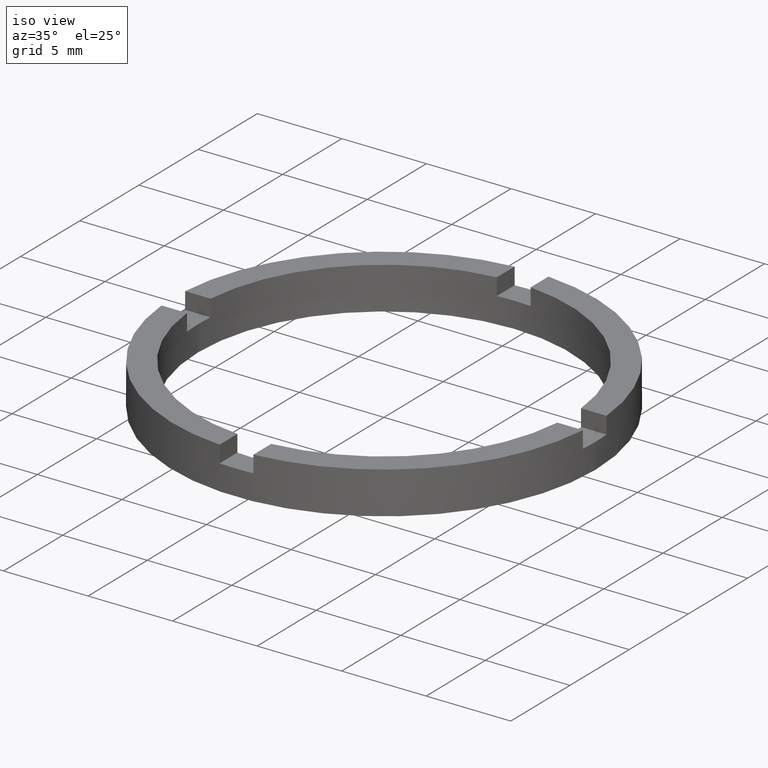
[diagram: clean part render]
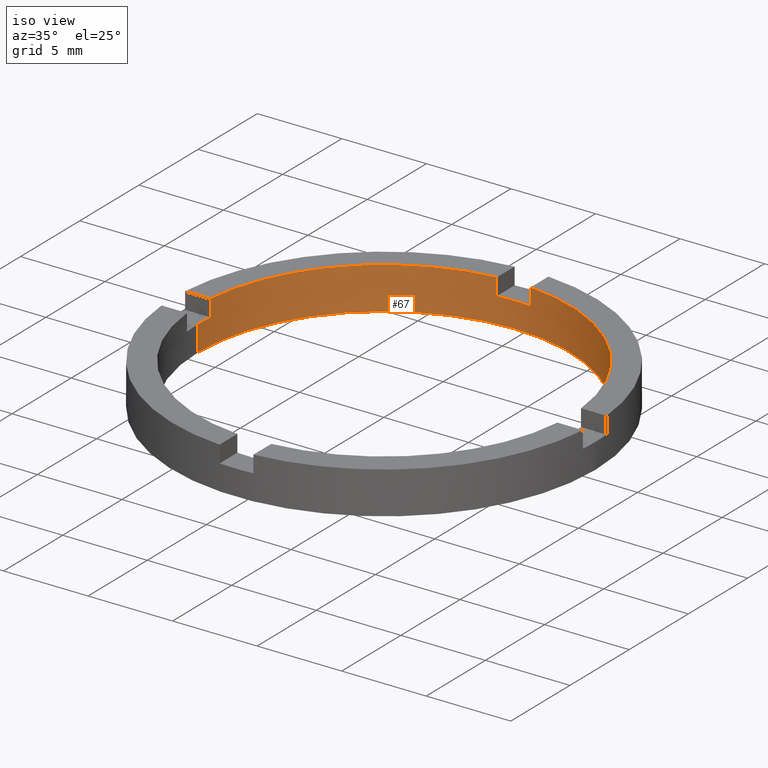
[diagram: same view with one face highlighted and labeled with its STEP entity id]
A machine part, iso view. The second image highlights one B-rep face of the part: STEP entity #67.
In plain terms, the highlighted cylindrical surface (partial cylindrical patch) has radius 11 mm, axis along (-0, -0, -1).
Its self-contained STEP definition (entity closure, byte-faithful):
#1 = CARTESIAN_POINT ( 'NONE',  ( -1.000000000000024425, 10.95445115010331882, 2.500000000000000000 ) ) ;
#6 = DIRECTION ( 'NONE',  ( 0.000000000000000000, 0.000000000000000000, 1.000000000000000000 ) ) ;
#14 = LINE ( 'NONE', #1, #542 ) ;
#18 = CARTESIAN_POINT ( 'NONE',  ( 0.000000000000000000, 0.000000000000000000, 0.000000000000000000 ) ) ;
#21 = EDGE_CURVE ( 'NONE', #759, #750, #149, .T. ) ;
#22 = LINE ( 'NONE', #249, #276 ) ;
#24 = DIRECTION ( 'NONE',  ( 1.000000000000000000, 0.000000000000000000, 0.000000000000000000 ) ) ;
#26 = EDGE_CURVE ( 'NONE', #119, #252, #664, .T. ) ;
#47 = CARTESIAN_POINT ( 'NONE',  ( -11.00000000000000000, 0.000000000000000000, 0.000000000000000000 ) ) ;
#55 = AXIS2_PLACEMENT_3D ( 'NONE', #18, #91, #516 ) ;
#57 = EDGE_CURVE ( 'NONE', #119, #669, #416, .T. ) ;
#61 = AXIS2_PLACEMENT_3D ( 'NONE', #475, #162, #172 ) ;
#67 = ADVANCED_FACE ( 'NONE', ( #678 ), #390, .F. ) ;
#69 = CARTESIAN_POINT ( 'NONE',  ( -11.00000000000000000, 0.000000000000000000, 2.500000000000000000 ) ) ;
#70 = CARTESIAN_POINT ( 'NONE',  ( 10.95445115010333659, 0.9999999999998402389, 2.500000000000000000 ) ) ;
#91 = DIRECTION ( 'NONE',  ( 0.000000000000000000, 0.000000000000000000, 1.000000000000000000 ) ) ;
#98 = VERTEX_POINT ( 'NONE', #587 ) ;
#103 = EDGE_CURVE ( 'NONE', #98, #219, #648, .T. ) ;
#119 = VERTEX_POINT ( 'NONE', #223 ) ;
#124 = VERTEX_POINT ( 'NONE', #70 ) ;
#126 = CARTESIAN_POINT ( 'NONE',  ( 0.000000000000000000, 0.000000000000000000, 1.500000000000000000 ) ) ;
#138 = VERTEX_POINT ( 'NONE', #47 ) ;
#140 = EDGE_CURVE ( 'NONE', #221, #666, #441, .T. ) ;
#145 = CARTESIAN_POINT ( 'NONE',  ( 0.9999999999999754641, 10.95445115010332415, 2.500000000000000000 ) ) ;
#148 = ORIENTED_EDGE ( 'NONE', *, *, #700, .F. ) ;
#149 = CIRCLE ( 'NONE', #247, 11.00000000000000000 ) ;
#160 = ORIENTED_EDGE ( 'NONE', *, *, #26, .T. ) ;
#162 = DIRECTION ( 'NONE',  ( 0.000000000000000000, 0.000000000000000000, 1.000000000000000000 ) ) ;
#165 = VECTOR ( 'NONE', #612, 1000.000000000000000 ) ;
#172 = DIRECTION ( 'NONE',  ( 1.000000000000000000, 0.000000000000000000, 0.000000000000000000 ) ) ;
#174 = LINE ( 'NONE', #574, #165 ) ;
#176 = DIRECTION ( 'NONE',  ( 1.000000000000000000, 0.000000000000000000, 0.000000000000000000 ) ) ;
#183 = AXIS2_PLACEMENT_3D ( 'NONE', #536, #303, #496 ) ;
#187 = DIRECTION ( 'NONE',  ( -0.000000000000000000, -0.000000000000000000, -1.000000000000000000 ) ) ;
#205 = EDGE_CURVE ( 'NONE', #666, #138, #706, .T. ) ;
#213 = ORIENTED_EDGE ( 'NONE', *, *, #455, .T. ) ;
#216 = DIRECTION ( 'NONE',  ( 0.000000000000000000, -0.000000000000000000, 1.000000000000000000 ) ) ;
#219 = VERTEX_POINT ( 'NONE', #610 ) ;
#221 = VERTEX_POINT ( 'NONE', #477 ) ;
#223 = CARTESIAN_POINT ( 'NONE',  ( 0.9999999999999754641, 10.95445115010332415, 1.500000000000000000 ) ) ;
#225 = AXIS2_PLACEMENT_3D ( 'NONE', #721, #6, #176 ) ;
#230 = CARTESIAN_POINT ( 'NONE',  ( 0.000000000000000000, 0.000000000000000000, 2.500000000000000000 ) ) ;
#235 = CARTESIAN_POINT ( 'NONE',  ( 10.95445115010333659, 0.9999999999998402389, 1.500000000000000000 ) ) ;
#247 = AXIS2_PLACEMENT_3D ( 'NONE', #126, #322, #24 ) ;
#249 = CARTESIAN_POINT ( 'NONE',  ( 10.95445115010333659, 0.9999999999998402389, 2.500000000000000000 ) ) ;
#252 = VERTEX_POINT ( 'NONE', #472 ) ;
#273 = CARTESIAN_POINT ( 'NONE',  ( 0.000000000000000000, 0.000000000000000000, 1.500000000000000000 ) ) ;
#275 = VECTOR ( 'NONE', #493, 1000.000000000000000 ) ;
#276 = VECTOR ( 'NONE', #187, 1000.000000000000000 ) ;
#291 = LINE ( 'NONE', #295, #275 ) ;
#295 = CARTESIAN_POINT ( 'NONE',  ( 11.00000000000000000, 1.347111479062088405E-15, 2.500000000000000000 ) ) ;
#302 = DIRECTION ( 'NONE',  ( -0.000000000000000000, -0.000000000000000000, -1.000000000000000000 ) ) ;
#303 = DIRECTION ( 'NONE',  ( -0.000000000000000000, -0.000000000000000000, -1.000000000000000000 ) ) ;
#313 = EDGE_CURVE ( 'NONE', #360, #138, #458, .T. ) ;
#322 = DIRECTION ( 'NONE',  ( 0.000000000000000000, 0.000000000000000000, 1.000000000000000000 ) ) ;
#328 = DIRECTION ( 'NONE',  ( -0.000000000000000000, -0.000000000000000000, -1.000000000000000000 ) ) ;
#338 = CARTESIAN_POINT ( 'NONE',  ( 0.9999999999999754641, 10.95445115010332415, 2.500000000000000000 ) ) ;
#347 = AXIS2_PLACEMENT_3D ( 'NONE', #273, #216, #755 ) ;
#359 = CIRCLE ( 'NONE', #61, 11.00000000000000000 ) ;
#360 = VERTEX_POINT ( 'NONE', #456 ) ;
#373 = DIRECTION ( 'NONE',  ( 0.000000000000000000, 0.000000000000000000, 1.000000000000000000 ) ) ;
#390 = CYLINDRICAL_SURFACE ( 'NONE', #183, 11.00000000000000000 ) ;
#397 = ORIENTED_EDGE ( 'NONE', *, *, #774, .F. ) ;
#400 = ORIENTED_EDGE ( 'NONE', *, *, #57, .F. ) ;
#416 = LINE ( 'NONE', #338, #439 ) ;
#439 = VECTOR ( 'NONE', #373, 1000.000000000000000 ) ;
#441 = CIRCLE ( 'NONE', #225, 11.00000000000000000 ) ;
#455 = EDGE_CURVE ( 'NONE', #124, #669, #359, .T. ) ;
#456 = CARTESIAN_POINT ( 'NONE',  ( 11.00000000000000000, 1.347111479062088405E-15, 0.000000000000000000 ) ) ;
#458 = CIRCLE ( 'NONE', #55, 11.00000000000000000 ) ;
#472 = CARTESIAN_POINT ( 'NONE',  ( -1.000000000000024425, 10.95445115010331882, 1.500000000000000000 ) ) ;
#475 = CARTESIAN_POINT ( 'NONE',  ( 0.000000000000000000, 0.000000000000000000, 2.500000000000000000 ) ) ;
#477 = CARTESIAN_POINT ( 'NONE',  ( -10.95445115010332415, 0.9999999999999781286, 1.500000000000000000 ) ) ;
#482 = DIRECTION ( 'NONE',  ( 0.000000000000000000, 0.000000000000000000, 1.000000000000000000 ) ) ;
#493 = DIRECTION ( 'NONE',  ( -0.000000000000000000, -0.000000000000000000, -1.000000000000000000 ) ) ;
#496 = DIRECTION ( 'NONE',  ( -1.000000000000000000, 0.000000000000000000, 0.000000000000000000 ) ) ;
#515 = ORIENTED_EDGE ( 'NONE', *, *, #752, .F. ) ;
#516 = DIRECTION ( 'NONE',  ( 1.000000000000000000, 0.000000000000000000, 0.000000000000000000 ) ) ;
#536 = CARTESIAN_POINT ( 'NONE',  ( 0.000000000000000000, 0.000000000000000000, 2.500000000000000000 ) ) ;
#542 = VECTOR ( 'NONE', #302, 1000.000000000000000 ) ;
#574 = CARTESIAN_POINT ( 'NONE',  ( -10.95445115010332415, 0.9999999999999781286, 2.500000000000000000 ) ) ;
#587 = CARTESIAN_POINT ( 'NONE',  ( -1.000000000000024425, 10.95445115010331882, 2.500000000000000000 ) ) ;
#589 = EDGE_CURVE ( 'NONE', #221, #219, #174, .T. ) ;
#604 = CARTESIAN_POINT ( 'NONE',  ( -11.00000000000000000, 0.000000000000000000, 1.500000000000000000 ) ) ;
#609 = AXIS2_PLACEMENT_3D ( 'NONE', #230, #482, #615 ) ;
#610 = CARTESIAN_POINT ( 'NONE',  ( -10.95445115010332415, 0.9999999999999781286, 2.500000000000000000 ) ) ;
#612 = DIRECTION ( 'NONE',  ( 0.000000000000000000, 0.000000000000000000, 1.000000000000000000 ) ) ;
#615 = DIRECTION ( 'NONE',  ( 1.000000000000000000, 0.000000000000000000, 0.000000000000000000 ) ) ;
#631 = ORIENTED_EDGE ( 'NONE', *, *, #205, .T. ) ;
#648 = CIRCLE ( 'NONE', #609, 11.00000000000000000 ) ;
#649 = CARTESIAN_POINT ( 'NONE',  ( 11.00000000000000000, 1.347111479062088405E-15, 1.500000000000000000 ) ) ;
#651 = ORIENTED_EDGE ( 'NONE', *, *, #140, .T. ) ;
#664 = CIRCLE ( 'NONE', #347, 11.00000000000000000 ) ;
#666 = VERTEX_POINT ( 'NONE', #604 ) ;
#669 = VERTEX_POINT ( 'NONE', #145 ) ;
#678 = FACE_OUTER_BOUND ( 'NONE', #748, .T. ) ;
#679 = ORIENTED_EDGE ( 'NONE', *, *, #103, .T. ) ;
#700 = EDGE_CURVE ( 'NONE', #98, #252, #14, .T. ) ;
#706 = LINE ( 'NONE', #69, #707 ) ;
#707 = VECTOR ( 'NONE', #328, 1000.000000000000000 ) ;
#721 = CARTESIAN_POINT ( 'NONE',  ( 0.000000000000000000, 0.000000000000000000, 1.500000000000000000 ) ) ;
#723 = ORIENTED_EDGE ( 'NONE', *, *, #589, .F. ) ;
#727 = ORIENTED_EDGE ( 'NONE', *, *, #21, .T. ) ;
#733 = ORIENTED_EDGE ( 'NONE', *, *, #313, .F. ) ;
#748 = EDGE_LOOP ( 'NONE', ( #515, #727, #397, #213, #400, #160, #148, #679, #723, #651, #631, #733 ) ) ;
#750 = VERTEX_POINT ( 'NONE', #235 ) ;
#752 = EDGE_CURVE ( 'NONE', #759, #360, #291, .T. ) ;
#755 = DIRECTION ( 'NONE',  ( 1.000000000000000000, 0.000000000000000000, 0.000000000000000000 ) ) ;
#759 = VERTEX_POINT ( 'NONE', #649 ) ;
#774 = EDGE_CURVE ( 'NONE', #124, #750, #22, .T. ) ;